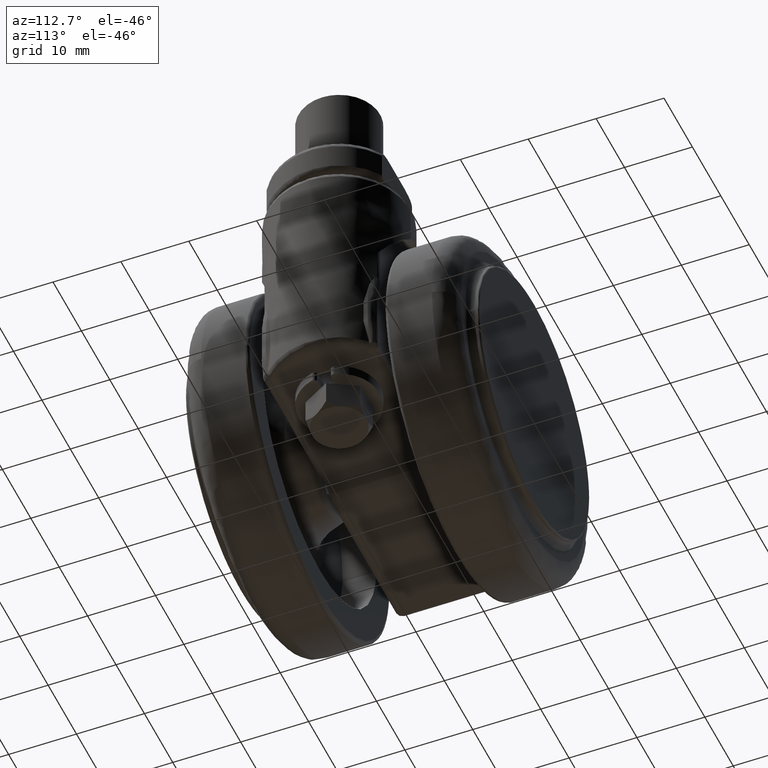
[diagram: clean part render]
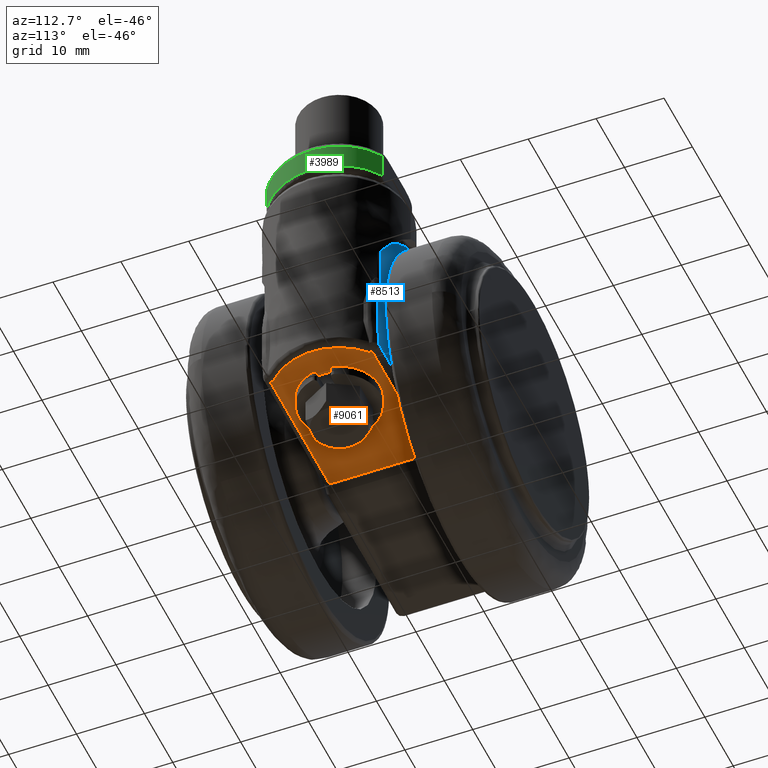
[diagram: same view with three faces highlighted in distinct colors, each labeled with its STEP entity id]
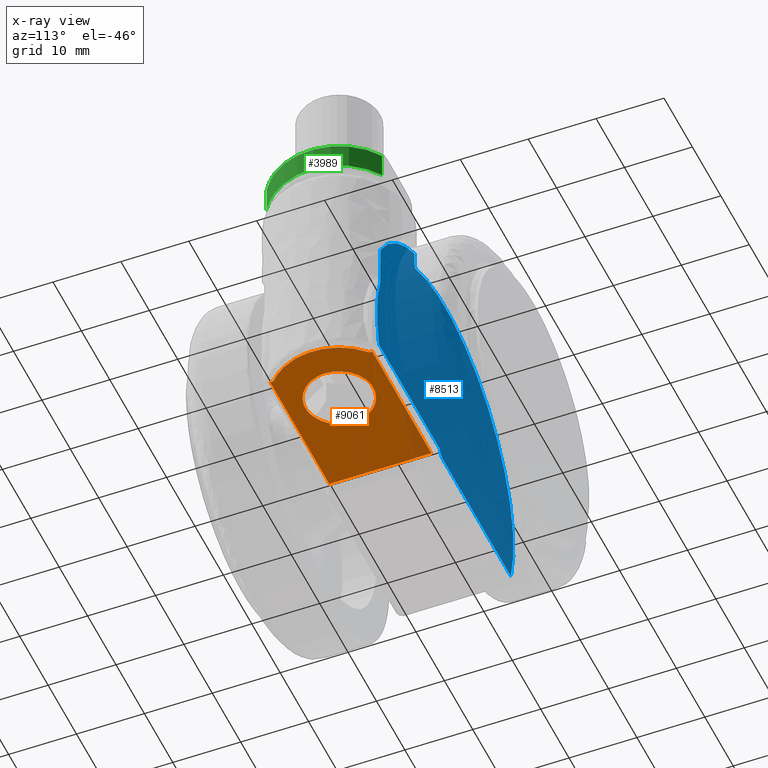
[diagram: x-ray of the same camera — body ghosted, the three highlighted faces saturated]
A machine part, auxiliary view with three faces highlighted in distinct colors.
The next image is the same camera in x-ray (body ghosted, the three faces saturated) — at least one of them is partly hidden behind the body in this view.
Their STEP definitions:

[orange] entity #9061 — the highlighted face is a freeform B-spline surface patch.
#6667=CARTESIAN_POINT('',(17.392295478770698,4.984586668655291,-6.500000000000000));
#6668=VERTEX_POINT('',#6667);
#6674=CARTESIAN_POINT('',(22.0,0.0,-6.500000000000000));
#6675=VERTEX_POINT('',#6674);
#6676=CARTESIAN_POINT('',(22.0,0.0,-6.500000000000000));
#6677=CARTESIAN_POINT('',(21.999999999999996,4.621952458168748,-6.500000000000001));
#6678=CARTESIAN_POINT('',(17.392295478770702,4.984586668655294,-6.500000000000000));
#6686=(BOUNDED_CURVE()B_SPLINE_CURVE(2,(#6676,#6677,#6678),.UNSPECIFIED.,.F.,.U.)B_SPLINE_CURVE_WITH_KNOTS((3,3),(0.0,0.236331300628245),.UNSPECIFIED.)CURVE()GEOMETRIC_REPRESENTATION_ITEM()RATIONAL_B_SPLINE_CURVE((1.0,0.723120658610494,0.969723356162379))REPRESENTATION_ITEM(''));
#6687=EDGE_CURVE('',#6675,#6668,#6686,.T.);
#6689=CARTESIAN_POINT('',(16.607704521229309,-4.984586668655291,-6.500000000000000));
#6690=VERTEX_POINT('',#6689);
#6691=CARTESIAN_POINT('',(16.607704521229302,-4.984586668655293,-6.499999999999999));
#6692=CARTESIAN_POINT('',(16.803549464895614,-5.0,-6.500000000000000));
#6693=CARTESIAN_POINT('',(17.0,-5.0,-6.500000000000000));
#6694=CARTESIAN_POINT('',(22.000000000000007,-5.000000000000001,-6.500000000000001));
#6695=CARTESIAN_POINT('',(22.0,0.0,-6.500000000000000));
#6703=(BOUNDED_CURVE()B_SPLINE_CURVE(2,(#6691,#6692,#6693,#6694,#6695),.UNSPECIFIED.,.F.,.U.)B_SPLINE_CURVE_WITH_KNOTS((3,2,3),(0.736331300628246,0.750000000000000,1.0),.UNSPECIFIED.)CURVE()GEOMETRIC_REPRESENTATION_ITEM()RATIONAL_B_SPLINE_CURVE((0.969723356162380,0.983986122576054,1.0,0.707106781186548,1.0))REPRESENTATION_ITEM(''));
#6704=EDGE_CURVE('',#6690,#6675,#6703,.T.);
#6736=CARTESIAN_POINT('',(12.0,0.0,-6.500000000000000));
#6737=VERTEX_POINT('',#6736);
#6738=CARTESIAN_POINT('',(12.0,0.0,-6.500000000000000));
#6739=CARTESIAN_POINT('',(12.0,-4.621952458168751,-6.499999999999999));
#6740=CARTESIAN_POINT('',(16.607704521229309,-4.984586668655293,-6.500000000000001));
#6748=(BOUNDED_CURVE()B_SPLINE_CURVE(2,(#6738,#6739,#6740),.UNSPECIFIED.,.F.,.U.)B_SPLINE_CURVE_WITH_KNOTS((3,3),(0.500000000000000,0.736331300628245),.UNSPECIFIED.)CURVE()GEOMETRIC_REPRESENTATION_ITEM()RATIONAL_B_SPLINE_CURVE((1.0,0.723120658610494,0.969723356162380))REPRESENTATION_ITEM(''));
#6749=EDGE_CURVE('',#6737,#6690,#6748,.T.);
#6751=CARTESIAN_POINT('',(17.392295478770698,4.984586668655294,-6.500000000000000));
#6752=CARTESIAN_POINT('',(17.196450535104390,5.000000000000001,-6.500000000000000));
#6753=CARTESIAN_POINT('',(17.0,5.0,-6.500000000000000));
#6754=CARTESIAN_POINT('',(12.0,5.000000000000001,-6.500000000000001));
#6755=CARTESIAN_POINT('',(12.0,0.0,-6.500000000000000));
#6763=(BOUNDED_CURVE()B_SPLINE_CURVE(2,(#6751,#6752,#6753,#6754,#6755),.UNSPECIFIED.,.F.,.U.)B_SPLINE_CURVE_WITH_KNOTS((3,2,3),(0.236331300628245,0.250000000000000,0.500000000000000),.UNSPECIFIED.)CURVE()GEOMETRIC_REPRESENTATION_ITEM()RATIONAL_B_SPLINE_CURVE((0.969723356162379,0.983986122576054,1.0,0.707106781186548,1.0))REPRESENTATION_ITEM(''));
#6764=EDGE_CURVE('',#6668,#6737,#6763,.T.);
#8619=CARTESIAN_POINT('',(23.361292772447349,-7.500000000000000,-6.500000000000000));
#8620=VERTEX_POINT('',#8619);
#8711=CARTESIAN_POINT('',(23.361292772447349,7.500000000000000,-6.500000000000000));
#8712=VERTEX_POINT('',#8711);
#8759=CARTESIAN_POINT('',(23.361292772447349,-7.055774533189781,-6.500000000000000));
#8760=VERTEX_POINT('',#8759);
#8761=CARTESIAN_POINT('',(23.361292772447349,-7.055774533189781,-6.500000000000000));
#8762=CARTESIAN_POINT('',(23.361292772447349,-7.500000000000000,-6.500000000000000));
#8763=QUASI_UNIFORM_CURVE('',1,(#8761,#8762),.UNSPECIFIED.,.F.,.U.);
#8764=EDGE_CURVE('',#8760,#8620,#8763,.T.);
#8814=CARTESIAN_POINT('',(2.500000000000120,-7.500000000000000,-6.500000000000000));
#8815=VERTEX_POINT('',#8814);
#8816=CARTESIAN_POINT('',(23.361292772447349,-7.500000000000000,-6.500000000000000));
#8817=CARTESIAN_POINT('',(2.500000000000120,-7.500000000000000,-6.500000000000000));
#8818=QUASI_UNIFORM_CURVE('',1,(#8816,#8817),.UNSPECIFIED.,.F.,.U.);
#8819=EDGE_CURVE('',#8620,#8815,#8818,.T.);
#8859=CARTESIAN_POINT('',(23.361292772447349,7.055774533189781,-6.500000000000000));
#8860=VERTEX_POINT('',#8859);
#8861=CARTESIAN_POINT('',(23.361292772447349,7.055774533189781,-6.500000000000000));
#8862=CARTESIAN_POINT('',(23.699693179572900,6.750700419642795,-6.500000000000025));
#8863=CARTESIAN_POINT('',(24.390039204421619,6.031859031843397,-6.499999999999966));
#8864=CARTESIAN_POINT('',(25.209517054254849,4.854900167012912,-6.500000000000006));
#8865=CARTESIAN_POINT('',(25.838350429153849,3.567957368646029,-6.499999999999979));
#8866=CARTESIAN_POINT('',(26.312871373435630,2.106544172259368,-6.500000000000047));
#8867=CARTESIAN_POINT('',(26.528766124750209,0.581354671405252,-6.499999999999920));
#8868=CARTESIAN_POINT('',(26.485900043160900,-0.871125338134893,-6.500000000000120));
#8869=CARTESIAN_POINT('',(26.265458615120981,-2.264499315343688,-6.499999999999758));
#8870=CARTESIAN_POINT('',(25.788545355502581,-3.750067850045329,-6.500000000000187));
#8871=CARTESIAN_POINT('',(24.846480962267371,-5.486711847448524,-6.499999999999901));
#8872=CARTESIAN_POINT('',(23.945947273709780,-6.528962079183244,-6.500000000000023));
#8873=CARTESIAN_POINT('',(23.361292772447349,-7.055774533189781,-6.500000000000000));
#8874=B_SPLINE_CURVE_WITH_KNOTS('',3,(#8861,#8862,#8863,#8864,#8865,#8866,#8867,#8868,#8869,#8870,#8871,#8872,#8873),.UNSPECIFIED.,.F.,.U.,(4,1,1,1,1,1,1,1,1,1,4),(0.000000057641259,1.366849089940303,2.982214922248712,4.286945506173232,5.653809288946526,7.579840708770529,8.884508069401404,10.002853240760050,11.804624243751199,13.544266858703770,15.905176890856760),.UNSPECIFIED.);
#8875=EDGE_CURVE('',#8860,#8760,#8874,.T.);
#8951=CARTESIAN_POINT('',(23.361292772447349,7.500000000000000,-6.500000000000000));
#8952=CARTESIAN_POINT('',(23.361292772447349,7.055774533189781,-6.500000000000000));
#8953=QUASI_UNIFORM_CURVE('',1,(#8951,#8952),.UNSPECIFIED.,.F.,.U.);
#8954=EDGE_CURVE('',#8712,#8860,#8953,.T.);
#8978=CARTESIAN_POINT('',(2.500000000000120,7.500000000000000,-6.500000000000000));
#8979=VERTEX_POINT('',#8978);
#8980=CARTESIAN_POINT('',(2.500000000000120,7.500000000000000,-6.500000000000000));
#8981=CARTESIAN_POINT('',(23.361292772447349,7.500000000000000,-6.500000000000000));
#8982=QUASI_UNIFORM_CURVE('',1,(#8980,#8981),.UNSPECIFIED.,.F.,.U.);
#8983=EDGE_CURVE('',#8979,#8712,#8982,.T.);
#9033=CARTESIAN_POINT('',(2.500000000000120,7.500000000000000,-6.500000000000000));
#9034=CARTESIAN_POINT('',(2.500000000000120,-7.500000000000000,-6.500000000000000));
#9035=QUASI_UNIFORM_CURVE('',1,(#9033,#9034),.UNSPECIFIED.,.F.,.U.);
#9036=EDGE_CURVE('',#8979,#8815,#9035,.T.);
#9042=CARTESIAN_POINT('',(27.698799953483348,-8.249249970927089,-6.500000000000000));
#9043=CARTESIAN_POINT('',(1.301199402786621,-8.249249970927089,-6.500000000000000));
#9044=CARTESIAN_POINT('',(27.698799953483341,8.249250373258443,-6.500000000000000));
#9045=CARTESIAN_POINT('',(1.301199402786621,8.249250373258443,-6.500000000000000));
#9046=B_SPLINE_SURFACE_WITH_KNOTS('',1,1,((#9042,#9044),(#9043,#9045)),.UNSPECIFIED.,.F.,.F.,.U.,(2,2),(2,2),(0.0,26.397600550696719),(0.0,16.498500344185530),.UNSPECIFIED.);
#9047=ORIENTED_EDGE('',*,*,#9036,.F.);
#9048=ORIENTED_EDGE('',*,*,#8983,.T.);
#9049=ORIENTED_EDGE('',*,*,#8954,.T.);
#9050=ORIENTED_EDGE('',*,*,#8875,.T.);
#9051=ORIENTED_EDGE('',*,*,#8764,.T.);
#9052=ORIENTED_EDGE('',*,*,#8819,.T.);
#9053=EDGE_LOOP('',(#9047,#9048,#9049,#9050,#9051,#9052));
#9054=FACE_OUTER_BOUND('',#9053,.T.);
#9055=ORIENTED_EDGE('',*,*,#6749,.T.);
#9056=ORIENTED_EDGE('',*,*,#6704,.T.);
#9057=ORIENTED_EDGE('',*,*,#6687,.T.);
#9058=ORIENTED_EDGE('',*,*,#6764,.T.);
#9059=EDGE_LOOP('',(#9055,#9056,#9057,#9058));
#9060=FACE_BOUND('',#9059,.T.);
#9061=ADVANCED_FACE('',(#9054,#9060),#9046,.T.);

[blue] entity #8513 — the highlighted face is a freeform B-spline surface patch.
#6798=CARTESIAN_POINT('',(10.835585997030799,8.500000000000000,24.183466999190799));
#6799=VERTEX_POINT('',#6798);
#6823=CARTESIAN_POINT('',(10.835585997031000,8.500000000000000,22.640273696058799));
#6824=VERTEX_POINT('',#6823);
#6825=CARTESIAN_POINT('',(10.835585997030799,8.500000000000000,24.183466999190799));
#6826=CARTESIAN_POINT('',(10.835585997031000,8.500000000000000,22.640273696058799));
#6827=QUASI_UNIFORM_CURVE('',1,(#6825,#6826),.UNSPECIFIED.,.F.,.U.);
#6828=EDGE_CURVE('',#6799,#6824,#6827,.T.);
#7430=CARTESIAN_POINT('',(22.830951894845299,8.500000000000000,7.399164518731801));
#7431=VERTEX_POINT('',#7430);
#7445=CARTESIAN_POINT('',(22.830951894845299,8.500000000000000,13.453536173633299));
#7446=VERTEX_POINT('',#7445);
#7447=CARTESIAN_POINT('',(22.830951894845299,8.500000000000000,13.453536173633299));
#7448=CARTESIAN_POINT('',(22.830951894845299,8.500000000000000,7.399164518731801));
#7449=QUASI_UNIFORM_CURVE('',1,(#7447,#7448),.UNSPECIFIED.,.F.,.U.);
#7450=EDGE_CURVE('',#7446,#7431,#7449,.T.);
#7948=CARTESIAN_POINT('',(10.519259301592101,8.500000000000000,21.571860924497649));
#7949=VERTEX_POINT('',#7948);
#7950=CARTESIAN_POINT('',(10.519259301592101,8.500000000000000,21.571860924497649));
#7951=CARTESIAN_POINT('',(10.526676076427140,8.500000000000000,21.580945536070129));
#7952=CARTESIAN_POINT('',(10.534228568331301,8.500000000000000,21.590400479527460));
#7953=CARTESIAN_POINT('',(10.548736710344169,8.500000000000000,21.609417072790979));
#7954=CARTESIAN_POINT('',(10.555801242226281,8.500000000000000,21.619032015800268));
#7955=CARTESIAN_POINT('',(10.576463655569469,8.500000000000002,21.648175720686279));
#7956=CARTESIAN_POINT('',(10.589531860306019,8.499999999999998,21.668002511289970));
#7957=CARTESIAN_POINT('',(10.626847344307871,8.500000000000000,21.728545824032430));
#7958=CARTESIAN_POINT('',(10.649217735745330,8.499999999999998,21.770318398786099));
#7959=CARTESIAN_POINT('',(10.689723438152360,8.499999999999998,21.856246465234982));
#7960=CARTESIAN_POINT('',(10.707928924108231,8.499999999999998,21.900636460711421));
#7961=CARTESIAN_POINT('',(10.740111076203689,8.500000000000000,21.990312869728200));
#7962=CARTESIAN_POINT('',(10.754086789711220,8.500000000000000,22.035513292402221));
#7963=CARTESIAN_POINT('',(10.790582250077589,8.500000000000000,22.172044638926231));
#7964=CARTESIAN_POINT('',(10.807722496924050,8.500000000000002,22.264296706357769));
#7965=CARTESIAN_POINT('',(10.830241689083870,8.499999999999998,22.450814754668681));
#7966=CARTESIAN_POINT('',(10.835585997031041,8.500000000000002,22.545086666580222));
#7967=CARTESIAN_POINT('',(10.835585997031041,8.500000000000000,22.640273696058799));
#7968=B_SPLINE_CURVE_WITH_KNOTS('',3,(#7950,#7951,#7952,#7953,#7954,#7955,#7956,#7957,#7958,#7959,#7960,#7961,#7962,#7963,#7964,#7965,#7966,#7967),.UNSPECIFIED.,.F.,.U.,(4,2,2,2,2,2,2,2,4),(0.0,0.031250000000005,0.062500000000010,0.125000000000013,0.250000000000011,0.375000000000009,0.500000000000006,0.750000000000003,1.0),.UNSPECIFIED.);
#7969=EDGE_CURVE('',#7949,#6824,#7968,.T.);
#8224=CARTESIAN_POINT('',(-23.103030104295851,8.500000000000000,-6.500000000000000));
#8225=VERTEX_POINT('',#8224);
#8239=CARTESIAN_POINT('',(1.085786437626944,8.500000000000000,-6.500000000000000));
#8240=VERTEX_POINT('',#8239);
#8241=CARTESIAN_POINT('',(1.085786437626944,8.500000000000000,-6.500000000000000));
#8242=CARTESIAN_POINT('',(-23.103030104295851,8.500000000000000,-6.500000000000000));
#8243=QUASI_UNIFORM_CURVE('',1,(#8241,#8242),.UNSPECIFIED.,.F.,.U.);
#8244=EDGE_CURVE('',#8240,#8225,#8243,.T.);
#8334=CARTESIAN_POINT('',(-23.103030104295851,8.500000000000000,-6.500000000000000));
#8335=CARTESIAN_POINT('',(-23.346244557570770,8.499999999999989,-5.635610764137390));
#8336=CARTESIAN_POINT('',(-23.735484791490009,8.500000000000020,-3.879493497493383));
#8337=CARTESIAN_POINT('',(-24.005457262742389,8.499999999999975,-1.339599236770618));
#8338=CARTESIAN_POINT('',(-24.011969827971519,8.500000000000032,1.141504496919915));
#8339=CARTESIAN_POINT('',(-23.790989273043781,8.499999999999909,3.432703993917839));
#8340=CARTESIAN_POINT('',(-23.295305989846231,8.500000000000046,5.973533331593217));
#8341=CARTESIAN_POINT('',(-22.426274491585119,8.500000000000014,8.756552783996602));
#8342=CARTESIAN_POINT('',(-21.138895233915481,8.499999999999954,11.493854406330341));
#8343=CARTESIAN_POINT('',(-19.718133782241448,8.500000000000048,13.744420474461529));
#8344=CARTESIAN_POINT('',(-18.092583601994480,8.499999999999952,15.850409708342051));
#8345=CARTESIAN_POINT('',(-16.033051550238859,8.500000000000073,17.966521359326499));
#8346=CARTESIAN_POINT('',(-13.297168220413701,8.499999999999707,20.078935389592420));
#8347=CARTESIAN_POINT('',(-10.693827732398770,8.500000000000982,21.548279440125182));
#8348=CARTESIAN_POINT('',(-8.207294529475309,8.499999999998352,22.591013063935520));
#8349=CARTESIAN_POINT('',(-5.495271710868497,8.500000000003361,23.438439346925001));
#8350=CARTESIAN_POINT('',(-2.759158713449573,8.499999999998398,23.902836987235609));
#8351=CARTESIAN_POINT('',(0.077343010024141,8.499999999999712,24.035873104368129));
#8352=CARTESIAN_POINT('',(2.664624706985277,8.500000000000618,23.913244976623439));
#8353=CARTESIAN_POINT('',(5.076955345491345,8.499999999999824,23.497009272345998));
#8354=CARTESIAN_POINT('',(7.780173271806509,8.500000000000012,22.756478069076390));
#8355=CARTESIAN_POINT('',(9.389343724878328,8.500000000000007,22.122949486084050));
#8356=CARTESIAN_POINT('',(10.519259301592101,8.500000000000000,21.571860924497649));
#8357=B_SPLINE_CURVE_WITH_KNOTS('',3,(#8334,#8335,#8336,#8337,#8338,#8339,#8340,#8341,#8342,#8343,#8344,#8345,#8346,#8347,#8348,#8349,#8350,#8351,#8352,#8353,#8354,#8355,#8356),.UNSPECIFIED.,.F.,.U.,(4,1,1,1,1,1,1,1,1,1,1,1,1,1,1,1,1,1,1,1,4),(0.000000068685104,2.693863747682102,5.387725951119421,7.650559762373419,10.128935737586479,12.284030205576091,15.408918750199080,18.857071757102080,21.335432372464130,23.382794637648828,26.830952277420561,30.171299023557300,33.727197270955493,35.774526993252842,38.252901265539663,42.239827515535822,44.071656975528967,46.765530281602167,49.998163506862497,51.398975466437079,55.170385657455029),.UNSPECIFIED.);
#8358=EDGE_CURVE('',#8225,#7949,#8357,.T.);
#8381=CARTESIAN_POINT('',(22.830951894845299,8.500000000000000,13.453536173633310));
#8382=CARTESIAN_POINT('',(18.543147993956090,8.500000000000000,20.730035328375156));
#8383=CARTESIAN_POINT('',(10.835585997030799,8.500000000000000,24.183466999190799));
#8391=(BOUNDED_CURVE()B_SPLINE_CURVE(2,(#8381,#8382,#8383),.UNSPECIFIED.,.F.,.U.)CURVE()GEOMETRIC_REPRESENTATION_ITEM()QUASI_UNIFORM_CURVE()RATIONAL_B_SPLINE_CURVE((1.0,0.952779707509432,1.0))REPRESENTATION_ITEM(''));
#8392=EDGE_CURVE('',#7446,#6799,#8391,.T.);
#8473=CARTESIAN_POINT('',(-26.384489385240961,8.500000000000000,25.716106116329868));
#8474=CARTESIAN_POINT('',(26.396688943236921,8.500000000000000,25.716106116329868));
#8475=CARTESIAN_POINT('',(-26.384489385240961,8.500000000000000,-8.032639940133787));
#8476=CARTESIAN_POINT('',(26.396688943236921,8.500000000000000,-8.032639940133787));
#8477=B_SPLINE_SURFACE_WITH_KNOTS('',1,1,((#8473,#8475),(#8474,#8476)),.UNSPECIFIED.,.F.,.F.,.U.,(2,2),(2,2),(0.0,52.781178328477878),(0.0,33.748746056463652),.UNSPECIFIED.);
#8478=ORIENTED_EDGE('',*,*,#8392,.F.);
#8479=ORIENTED_EDGE('',*,*,#7450,.T.);
#8480=CARTESIAN_POINT('',(23.361292772447349,8.500000000000000,-5.500000000000000));
#8481=VERTEX_POINT('',#8480);
#8482=CARTESIAN_POINT('',(22.830951894845299,8.500000000000000,7.399164518731801));
#8483=CARTESIAN_POINT('',(24.897165414359868,8.500000000000000,1.023630990711071));
#8484=CARTESIAN_POINT('',(23.361292772447339,8.500000000000000,-5.499999999999995));
#8492=(BOUNDED_CURVE()B_SPLINE_CURVE(2,(#8482,#8483,#8484),.UNSPECIFIED.,.F.,.U.)CURVE()GEOMETRIC_REPRESENTATION_ITEM()QUASI_UNIFORM_CURVE()RATIONAL_B_SPLINE_CURVE((1.0,0.963151451001386,1.0))REPRESENTATION_ITEM(''));
#8493=EDGE_CURVE('',#7431,#8481,#8492,.T.);
#8494=ORIENTED_EDGE('',*,*,#8493,.T.);
#8495=CARTESIAN_POINT('',(2.085786437627060,8.500000000000000,-5.500000000000000));
#8496=VERTEX_POINT('',#8495);
#8497=CARTESIAN_POINT('',(23.361292772447349,8.500000000000000,-5.500000000000000));
#8498=CARTESIAN_POINT('',(2.085786437627060,8.500000000000000,-5.500000000000000));
#8499=QUASI_UNIFORM_CURVE('',1,(#8497,#8498),.UNSPECIFIED.,.F.,.U.);
#8500=EDGE_CURVE('',#8481,#8496,#8499,.T.);
#8501=ORIENTED_EDGE('',*,*,#8500,.T.);
#8502=CARTESIAN_POINT('',(2.085786437627060,8.500000000000000,-5.500000000000000));
#8503=CARTESIAN_POINT('',(1.085786437626944,8.500000000000000,-6.500000000000000));
#8504=QUASI_UNIFORM_CURVE('',1,(#8502,#8503),.UNSPECIFIED.,.F.,.U.);
#8505=EDGE_CURVE('',#8496,#8240,#8504,.T.);
#8506=ORIENTED_EDGE('',*,*,#8505,.T.);
#8507=ORIENTED_EDGE('',*,*,#8244,.T.);
#8508=ORIENTED_EDGE('',*,*,#8358,.T.);
#8509=ORIENTED_EDGE('',*,*,#7969,.T.);
#8510=ORIENTED_EDGE('',*,*,#6828,.F.);
#8511=EDGE_LOOP('',(#8478,#8479,#8494,#8501,#8506,#8507,#8508,#8509,#8510));
#8512=FACE_OUTER_BOUND('',#8511,.T.);
#8513=ADVANCED_FACE('',(#8512),#8477,.T.);

[green] entity #3989 — the highlighted face is a freeform B-spline surface patch.
#3559=CARTESIAN_POINT('',(22.267826876426401,-8.500000000000000,32.399999999999999));
#3560=VERTEX_POINT('',#3559);
#3594=CARTESIAN_POINT('',(22.267826876426401,8.500000000000000,32.399999999999999));
#3595=VERTEX_POINT('',#3594);
#3596=CARTESIAN_POINT('',(22.267826876426401,8.500000000000000,32.399999999999999));
#3597=CARTESIAN_POINT('',(22.897614806451319,8.109868003762516,32.400000000000077));
#3598=CARTESIAN_POINT('',(23.818525604055498,7.386031324933546,32.399999999999878));
#3599=CARTESIAN_POINT('',(24.897252389309930,6.181174990818329,32.400000000000027));
#3600=CARTESIAN_POINT('',(25.600243711620941,5.151997456892014,32.400000000000311));
#3601=CARTESIAN_POINT('',(26.268464772761430,3.856751843855033,32.399999999999672));
#3602=CARTESIAN_POINT('',(26.744302245936829,2.446497823891808,32.400000000000141));
#3603=CARTESIAN_POINT('',(27.016851534342219,0.744013889104458,32.400000000000233));
#3604=CARTESIAN_POINT('',(27.010344494308299,-0.903198714894008,32.399999999999672));
#3605=CARTESIAN_POINT('',(26.713172697202459,-2.549237422885762,32.400000000001143));
#3606=CARTESIAN_POINT('',(26.168701734272151,-4.101605512247361,32.399999999999771));
#3607=CARTESIAN_POINT('',(25.442832149512370,-5.430093702030288,32.399999999998521));
#3608=CARTESIAN_POINT('',(24.495133818616232,-6.674494444558237,32.400000000002407));
#3609=CARTESIAN_POINT('',(23.468955120292581,-7.675706239568776,32.399999999997263));
#3610=CARTESIAN_POINT('',(22.650149048972370,-8.263070877320196,32.400000000001903));
#3611=CARTESIAN_POINT('',(22.267826876426401,-8.500000000000000,32.399999999999999));
#3612=B_SPLINE_CURVE_WITH_KNOTS('',3,(#3596,#3597,#3598,#3599,#3600,#3601,#3602,#3603,#3604,#3605,#3606,#3607,#3608,#3609,#3610,#3611),.UNSPECIFIED.,.F.,.U.,(4,1,1,1,1,1,1,1,1,1,1,1,1,4),(0.000000087443482,2.222463966336594,3.492456626341820,4.841816154388214,5.953056466112429,7.858055590968174,9.286778425751137,11.112334608801500,12.779219836899189,14.287328042890000,16.033565516343248,17.303562806510570,18.970402239335250,20.319759216059872),.UNSPECIFIED.);
#3613=EDGE_CURVE('',#3595,#3560,#3612,.T.);
#3700=CARTESIAN_POINT('',(22.267826876426451,8.500000000000000,28.600000000000001));
#3701=VERTEX_POINT('',#3700);
#3702=CARTESIAN_POINT('',(22.267826876426451,-8.500000000000000,28.600000000000001));
#3703=VERTEX_POINT('',#3702);
#3704=CARTESIAN_POINT('',(22.267826876426451,8.500000000000000,28.600000000000001));
#3705=CARTESIAN_POINT('',(22.740119452478101,8.207352084044247,28.599999999999980));
#3706=CARTESIAN_POINT('',(23.507761186029221,7.637914618184754,28.600000000000030));
#3707=CARTESIAN_POINT('',(24.543062429933919,6.611642105667595,28.600000000000271));
#3708=CARTESIAN_POINT('',(25.383375143014671,5.517311856721157,28.599999999999199));
#3709=CARTESIAN_POINT('',(26.131733851825700,4.173096396488012,28.600000000001309));
#3710=CARTESIAN_POINT('',(26.701198704882589,2.628627646905138,28.599999999998769));
#3711=CARTESIAN_POINT('',(26.993779197212881,1.007583644939186,28.600000000000289));
#3712=CARTESIAN_POINT('',(27.019447504809872,-0.610269146642777,28.600000000000211));
#3713=CARTESIAN_POINT('',(26.812372630030119,-2.135674728338608,28.600000000000339));
#3714=CARTESIAN_POINT('',(26.328345013971511,-3.736200583807780,28.599999999999319));
#3715=CARTESIAN_POINT('',(25.650154798618299,-5.090251559187971,28.600000000001550));
#3716=CARTESIAN_POINT('',(24.798572590943230,-6.305543570348585,28.599999999998811));
#3717=CARTESIAN_POINT('',(23.758479148186620,-7.439782082050718,28.600000000001380));
#3718=CARTESIAN_POINT('',(22.830102122028752,-8.151637102645362,28.599999999999682));
#3719=CARTESIAN_POINT('',(22.267826876426451,-8.500000000000000,28.600000000000001));
#3720=B_SPLINE_CURVE_WITH_KNOTS('',3,(#3704,#3705,#3706,#3707,#3708,#3709,#3710,#3711,#3712,#3713,#3714,#3715,#3716,#3717,#3718,#3719),.UNSPECIFIED.,.F.,.U.,(4,1,1,1,1,1,1,1,1,1,1,1,1,4),(0.000000087432575,1.666828697947317,2.857447372018196,4.365567791288823,5.794312187653262,7.461165616739466,9.286778425747214,10.715496564275790,12.302972407429060,13.890448542060300,15.716064529263400,16.827314622655329,18.335433803769298,20.319759216059790),.UNSPECIFIED.);
#3721=EDGE_CURVE('',#3701,#3703,#3720,.T.);
#3961=CARTESIAN_POINT('',(22.043517663105849,-8.634982894131245,32.494999999999997));
#3962=CARTESIAN_POINT('',(22.043517663105849,-8.634982894131245,28.502624999999998));
#3963=CARTESIAN_POINT('',(37.305798258842543,0.279404396223678,32.494999999999990));
#3964=CARTESIAN_POINT('',(37.305798258842543,0.279404396223678,28.502624999999991));
#3965=CARTESIAN_POINT('',(21.804021350990499,8.770483388002475,32.494999999999997));
#3966=CARTESIAN_POINT('',(21.804021350990499,8.770483388002475,28.502624999999998));
#3974=(BOUNDED_SURFACE()B_SPLINE_SURFACE(1,2,((#3961,#3963,#3965),(#3962,#3964,#3966)),.UNSPECIFIED.,.F.,.F.,.U.)B_SPLINE_SURFACE_WITH_KNOTS((2,2),(3,3),(0.0,3.992374999999999),(0.0,23.327310535879210),.UNSPECIFIED.)GEOMETRIC_REPRESENTATION_ITEM()RATIONAL_B_SPLINE_SURFACE(((1.0,0.492423560103467,1.0),(1.0,0.492423560103467,1.0)))REPRESENTATION_ITEM('')SURFACE());
#3975=CARTESIAN_POINT('',(22.267826876426451,-8.500000000000000,28.600000000000001));
#3976=CARTESIAN_POINT('',(22.267826876426401,-8.500000000000000,32.399999999999999));
#3977=QUASI_UNIFORM_CURVE('',1,(#3975,#3976),.UNSPECIFIED.,.F.,.U.);
#3978=EDGE_CURVE('',#3703,#3560,#3977,.T.);
#3979=ORIENTED_EDGE('',*,*,#3978,.F.);
#3980=ORIENTED_EDGE('',*,*,#3721,.F.);
#3981=CARTESIAN_POINT('',(22.267826876426401,8.500000000000000,32.399999999999999));
#3982=CARTESIAN_POINT('',(22.267826876426451,8.500000000000000,28.600000000000001));
#3983=QUASI_UNIFORM_CURVE('',1,(#3981,#3982),.UNSPECIFIED.,.F.,.U.);
#3984=EDGE_CURVE('',#3595,#3701,#3983,.T.);
#3985=ORIENTED_EDGE('',*,*,#3984,.F.);
#3986=ORIENTED_EDGE('',*,*,#3613,.T.);
#3987=EDGE_LOOP('',(#3979,#3980,#3985,#3986));
#3988=FACE_OUTER_BOUND('',#3987,.T.);
#3989=ADVANCED_FACE('',(#3988),#3974,.T.);